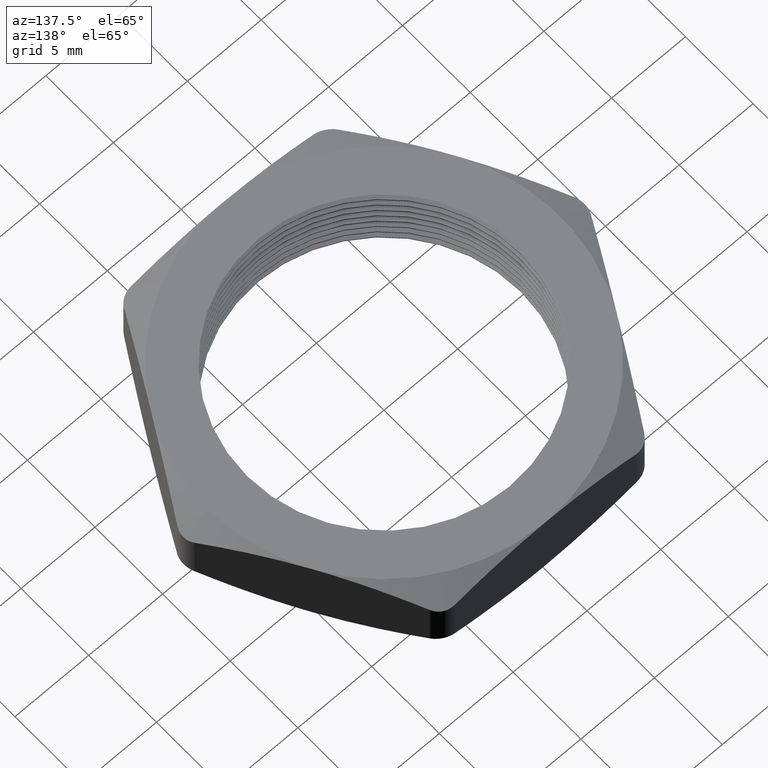
[diagram: clean part render]
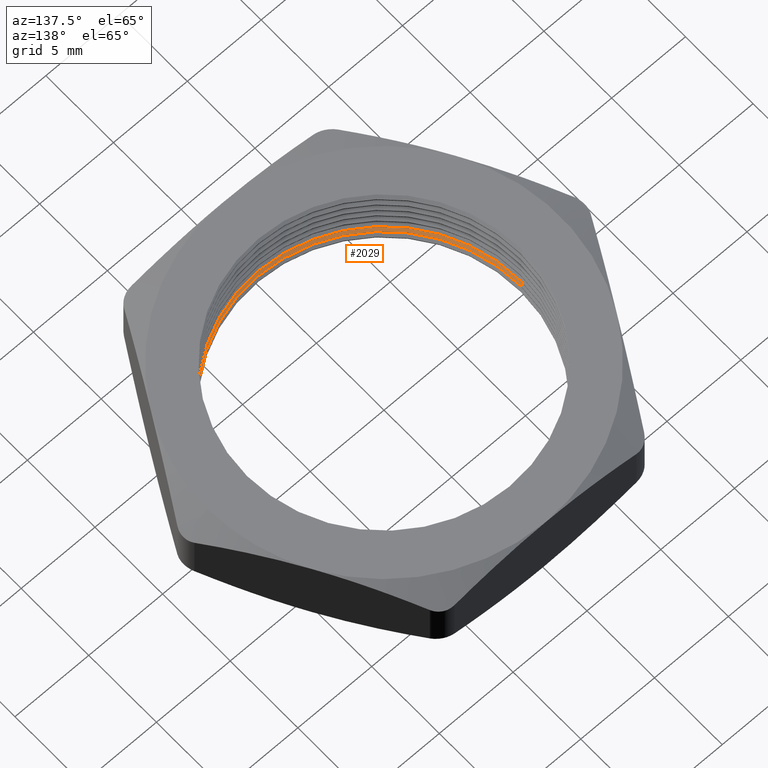
[diagram: same view with one face highlighted and labeled with its STEP entity id]
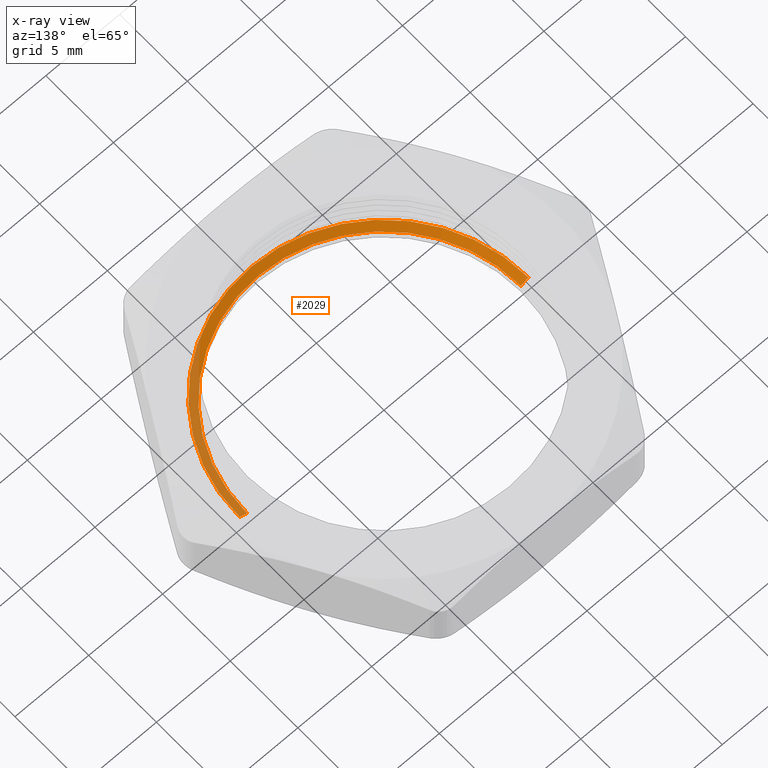
[diagram: x-ray of the same camera — body ghosted, the highlighted face saturated]
A machine part, auxiliary view. The second image highlights one B-rep face of the part: STEP entity #2029.
The next image is the same camera in x-ray: the body ghosted, the highlighted face saturated — about 26% of this face is hidden behind the body in this view.
In plain terms, the highlighted conical surface has half-angle 60 deg.
Its self-contained STEP definition (entity closure, byte-faithful):
#1061 = DIRECTION ( 'NONE',  ( 0.8660254037844366000, 0.0000000000000000000, 0.5000000000000035500 ) ) ;
#1062 = VECTOR ( 'NONE', #1061, 39.37007874015748100 ) ;
#1063 = CARTESIAN_POINT ( 'NONE',  ( 0.3649999999999999900, 0.0000000000000000000, 0.02690598923241514400 ) ) ;
#1064 = LINE ( 'NONE', #1063, #1062 ) ;
#1121 = DIRECTION ( 'NONE',  ( 1.000000000000000000, 0.0000000000000000000, 0.0000000000000000000 ) ) ;
#1122 = DIRECTION ( 'NONE',  ( 0.0000000000000000000, 0.0000000000000000000, 1.000000000000000000 ) ) ;
#1123 = CARTESIAN_POINT ( 'NONE',  ( 0.0000000000000000000, 0.0000000000000000000, 0.02690598923241514400 ) ) ;
#1124 = AXIS2_PLACEMENT_3D ( 'NONE', #1123, #1122, #1121 ) ;
#1125 = CONICAL_SURFACE ( 'NONE', #1124, 0.3649999999999999900, 1.047197551196593600 ) ;
#1136 = FACE_OUTER_BOUND ( 'NONE', #2030, .T. ) ;
#1252 = CIRCLE ( 'NONE', #1261, 0.3649999999999999900 ) ;
#1257 = CARTESIAN_POINT ( 'NONE',  ( -0.3649999999999999900, 0.0000000000000000000, 0.02690598923241514400 ) ) ;
#1258 = DIRECTION ( 'NONE',  ( 1.000000000000000000, 0.0000000000000000000, 0.0000000000000000000 ) ) ;
#1259 = DIRECTION ( 'NONE',  ( 0.0000000000000000000, 0.0000000000000000000, 1.000000000000000000 ) ) ;
#1260 = CARTESIAN_POINT ( 'NONE',  ( 0.0000000000000000000, 0.0000000000000000000, 0.02690598923241514400 ) ) ;
#1261 = AXIS2_PLACEMENT_3D ( 'NONE', #1260, #1259, #1258 ) ;
#1376 = DIRECTION ( 'NONE',  ( 1.000000000000000000, 0.0000000000000000000, 0.0000000000000000000 ) ) ;
#1377 = DIRECTION ( 'NONE',  ( 0.0000000000000000000, 0.0000000000000000000, 1.000000000000000000 ) ) ;
#1378 = CARTESIAN_POINT ( 'NONE',  ( 0.0000000000000000000, 0.0000000000000000000, 0.03845299461620777000 ) ) ;
#1379 = AXIS2_PLACEMENT_3D ( 'NONE', #1378, #1377, #1376 ) ;
#1380 = CIRCLE ( 'NONE', #1379, 0.3850000000000000100 ) ;
#1410 = CARTESIAN_POINT ( 'NONE',  ( 0.3850000000000000100, 4.714890176717309300E-017, 0.03845299461620777000 ) ) ;
#1411 = CARTESIAN_POINT ( 'NONE',  ( -0.3850000000000000100, 0.0000000000000000000, 0.03845299461620777000 ) ) ;
#1412 = DIRECTION ( 'NONE',  ( -0.8660254037844366000, 1.060575238724904300E-016, 0.5000000000000035500 ) ) ;
#1413 = VECTOR ( 'NONE', #1412, 39.37007874015748100 ) ;
#1414 = CARTESIAN_POINT ( 'NONE',  ( -0.3649999999999999900, 4.469960816887839200E-017, 0.02690598923241514400 ) ) ;
#1415 = LINE ( 'NONE', #1414, #1413 ) ;
#1416 = CARTESIAN_POINT ( 'NONE',  ( 0.3649999999999999900, 4.469960816887839200E-017, 0.02690598923241514400 ) ) ;
#2029 = ADVANCED_FACE ( 'NONE', ( #1136 ), #1125, .F. ) ;
#2030 = EDGE_LOOP ( 'NONE', ( #2031, #2063, #2066, #2121 ) ) ;
#2031 = ORIENTED_EDGE ( 'NONE', *, *, #2060, .F. ) ;
#2038 = EDGE_CURVE ( 'NONE', #2062, #2067, #1064, .T. ) ;
#2060 = EDGE_CURVE ( 'NONE', #2061, #2062, #1252, .T. ) ;
#2061 = VERTEX_POINT ( 'NONE', #1257 ) ;
#2062 = VERTEX_POINT ( 'NONE', #1416 ) ;
#2063 = ORIENTED_EDGE ( 'NONE', *, *, #2064, .T. ) ;
#2064 = EDGE_CURVE ( 'NONE', #2061, #2065, #1415, .T. ) ;
#2065 = VERTEX_POINT ( 'NONE', #1411 ) ;
#2066 = ORIENTED_EDGE ( 'NONE', *, *, #2120, .T. ) ;
#2067 = VERTEX_POINT ( 'NONE', #1410 ) ;
#2120 = EDGE_CURVE ( 'NONE', #2065, #2067, #1380, .T. ) ;
#2121 = ORIENTED_EDGE ( 'NONE', *, *, #2038, .F. ) ;